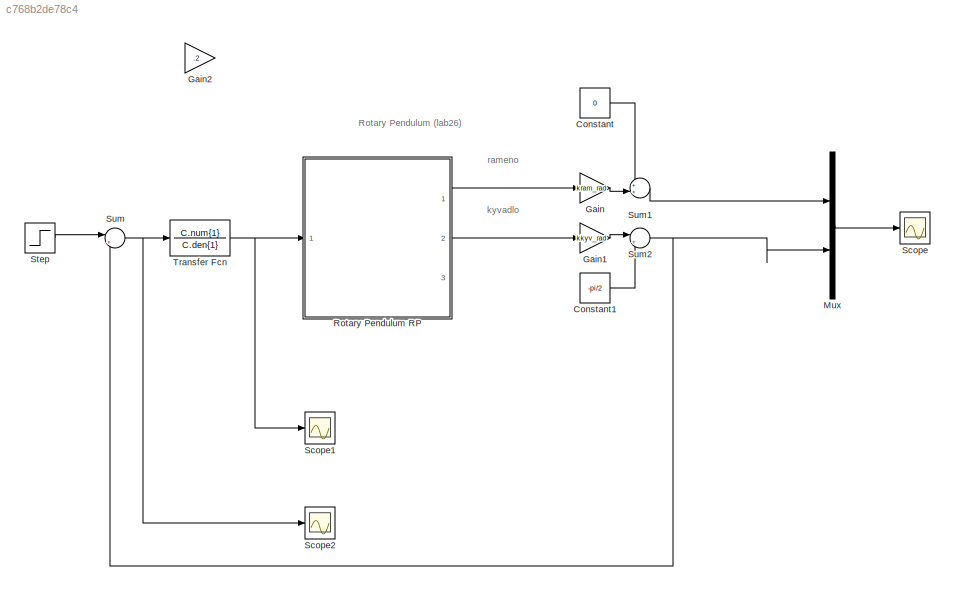
MODEL slx_c768b2de78c4
KIND model
BLOCK [Constant] Constant
  Value = 0
BLOCK [Constant] Constant1
  Value = -pi/2
BLOCK [Gain] Gain
  Gain = kram_rad
  OutDataTypeStr = Inherit: Inherit via internal rule
  ParamDataTypeStr = Inherit: Inherit via internal rule
  SaturateOnIntegerOverflow = off
BLOCK [Gain] Gain1
  Gain = kkyv_rad
  OutDataTypeStr = Inherit: Inherit via internal rule
  ParamDataTypeStr = Inherit: Inherit via internal rule
  SaturateOnIntegerOverflow = off
BLOCK [Gain] Gain2
  Gain = .2
  OutDataTypeStr = Inherit: Inherit via internal rule
  ParamDataTypeStr = Inherit: Inherit via internal rule
  SaturateOnIntegerOverflow = off
BLOCK [Mux] Mux
  DisplayOption = bar
  Inputs = 2
  Ports = [2, 1]
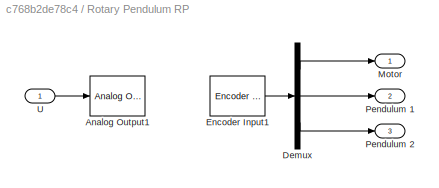
BLOCK [SubSystem] Rotary Pendulum RP 
  Ports = [1, 3]
  RequestExecContextInheritance = off
BLOCK [Reference] Rotary Pendulum RP /Analog Output1  REF=rtwinlib/Analog Output
  AttributesFormatString = Humusoft\nMF614 [auto]
  Channels = 1
  DrvAddress = 4294967295
  DrvName = Humusoft/MF614
  DrvOptions = 0
  FinalValue = [U_final]
  InitialValue = [U_init]
  MaxMissedTicks = 1000
  Ports = [1]
  RangeMode = 2
  SampleTime = Ts
  ShowMissedTicks = off
  SourceBlock = rtwinlib/Analog Output
  SourceType = RTWin Analog Output
  VoltRange = 1
  YieldWhenWaiting = on
BLOCK [Demux] Rotary Pendulum RP /Demux
  Outputs = 3
  Ports = [1, 3]
BLOCK [Reference] Rotary Pendulum RP /Encoder Input1  REF=rtwinlib/Encoder Input
  AttributesFormatString = Humusoft\nMF614 [auto]
  Channels = [2,4,1]
  DataType = 1
  DrvAddress = 4294967295
  DrvName = Humusoft/MF614
  DrvOptions = 0
  IndexPulse = 3
  InputFilter = Inf
  MaxMissedTicks = 1000
  Ports = [0, 1]
  QuadMode = 3
  SampleTime = Ts
  ShowMissedTicks = off
  SourceBlock = rtwinlib/Encoder Input
  SourceType = RTWin Encoder Input
  YieldWhenWaiting = on
BLOCK [Outport] Rotary Pendulum RP /Motor
  IconDisplay = Port number
BLOCK [Outport] Rotary Pendulum RP /Pendulum 1
  IconDisplay = Port number
  Port = 2
BLOCK [Outport] Rotary Pendulum RP /Pendulum 2
  IconDisplay = Port number
  Port = 3
BLOCK [Inport] Rotary Pendulum RP /U
  IconDisplay = Port number
BLOCK [Scope] Scope
  DataFormat = StructureWithTime
  Floating = off
  LimitDataPoints = off
  MaxDataPoints = 500000
  NumInputPorts = 1
  Ports = [1]
  SampleTime = 0
  SaveName = kyvadlo_odezva_pocpodm_PID
  SaveToWorkspace = on
  ShowLegends = off
  TimeRange = 5
  YMax = 6.5
  YMin = 3.5
BLOCK [Scope] Scope1
  DataFormat = StructureWithTime
  Floating = off
  LimitDataPoints = off
  MaxDataPoints = 500000
  NumInputPorts = 1
  Ports = [1]
  SampleTime = 0
  SaveName = kyvadlo_odezva_pocpodm_PID_akcnizasah
  SaveToWorkspace = on
  ShowLegends = off
  TimeRange = 5
  YMax = 60
  YMin = -80
BLOCK [Scope] Scope2
  Floating = off
  LimitDataPoints = off
  MaxDataPoints = 500000
  NumInputPorts = 1
  Ports = [1]
  SampleTime = 0
  SaveName = scopearray2
  SaveToWorkspace = on
  ShowLegends = off
  TimeRange = 5
  YMax = 60
  YMin = -80
BLOCK [Step] Step
  After = -pi/2
  SampleTime = 0
  Time = 0
BLOCK [Sum] Sum
  IconShape = round
  InputSameDT = off
  Inputs = |+-
  OutDataTypeStr = Inherit: Inherit via internal rule
  Ports = [2, 1]
  SaturateOnIntegerOverflow = off
BLOCK [Sum] Sum1
  IconShape = round
  InputSameDT = off
  Inputs = ++|
  OutDataTypeStr = Inherit: Inherit via internal rule
  Ports = [2, 1]
  SaturateOnIntegerOverflow = off
BLOCK [Sum] Sum2
  IconShape = round
  InputSameDT = off
  Inputs = |++
  OutDataTypeStr = Inherit: Inherit via internal rule
  Ports = [2, 1]
  SaturateOnIntegerOverflow = off
BLOCK [TransferFcn] Transfer Fcn
  Denominator = C.den{1}
  Numerator = C.num{1}
ANNOTATION (root): Rotary Pendulum (lab26)
ANNOTATION (root): kyvadlo
ANNOTATION (root): rameno
LINE Constant1:1 -> Sum2:2
LINE Constant:1 -> Sum1:1
LINE Gain1:1 -> Sum2:1
LINE Gain:1 -> Sum1:2
LINE Mux:1 -> Scope:1
LINE Rotary Pendulum RP /Demux:1 -> Rotary Pendulum RP /Motor:1
LINE Rotary Pendulum RP /Demux:2 -> Rotary Pendulum RP /Pendulum 1:1
LINE Rotary Pendulum RP /Demux:3 -> Rotary Pendulum RP /Pendulum 2:1
LINE Rotary Pendulum RP /Encoder Input1:1 -> Rotary Pendulum RP /Demux:1
LINE Rotary Pendulum RP /U:1 -> Rotary Pendulum RP /Analog Output1:1
LINE Rotary Pendulum RP :1 -> Gain:1
LINE Rotary Pendulum RP :2 -> Gain1:1
LINE Step:1 -> Sum:1
LINE Sum1:1 -> Mux:1
NET Sum2:1 -> Mux:2, Sum:2
NET Sum:1 -> Scope2:1, Transfer Fcn:1
NET Transfer Fcn:1 -> Rotary Pendulum RP :1, Scope1:1
note: NET lines group one-source signal fan-out (src -> all destinations, sorted); 1:1 wires keep LINE
